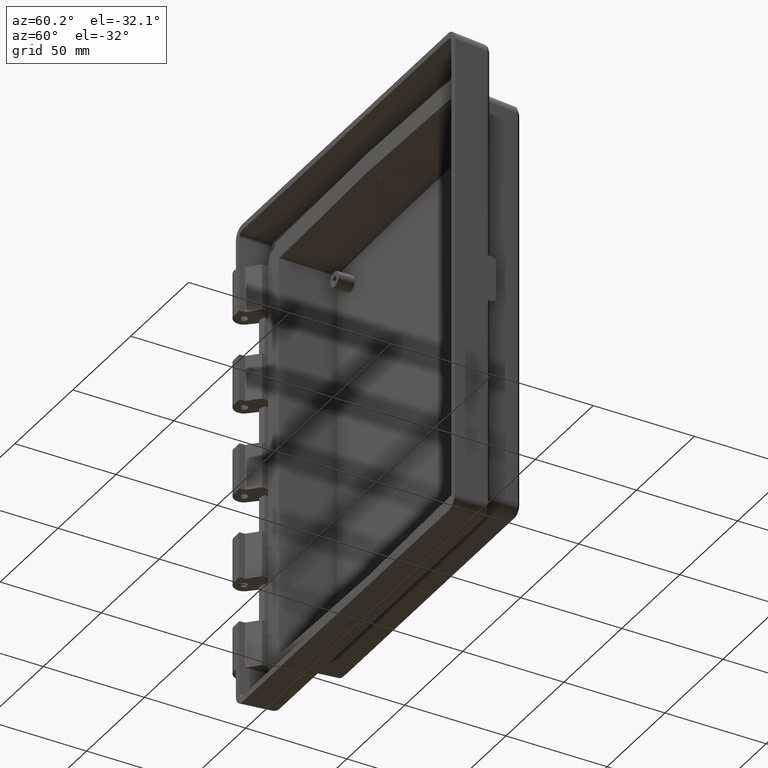
[diagram: clean part render]
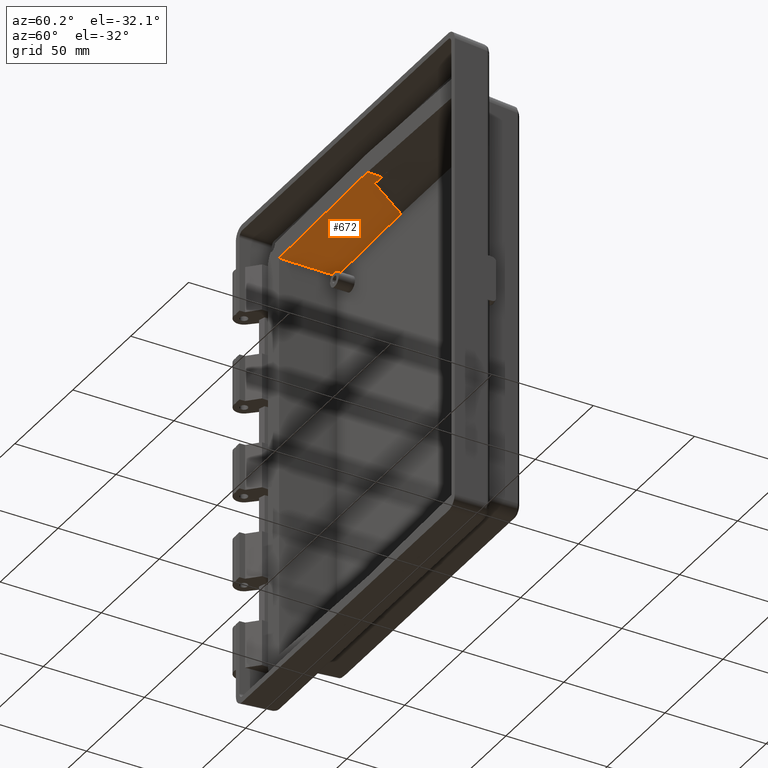
[diagram: same view with one face highlighted and labeled with its STEP entity id]
A machine part, auxiliary view. The second image highlights one B-rep face of the part: STEP entity #672.
In plain terms, the highlighted planar face has unit normal (0.0262, -0.0349, -0.999).
Its self-contained STEP definition (entity closure, byte-faithful):
#182 = VERTEX_POINT ( 'NONE', #2934 ) ;
#470 = LINE ( 'NONE', #8293, #7295 ) ;
#672 = ADVANCED_FACE ( 'NONE', ( #2758 ), #3971, .T. ) ;
#977 = EDGE_CURVE ( 'NONE', #4748, #7404, #470, .T. ) ;
#1084 = EDGE_CURVE ( 'NONE', #3117, #8044, #7407, .T. ) ;
#1111 = CARTESIAN_POINT ( 'NONE',  ( -76.44005613156466000, 3.000000000000000000, 100.3952735909513800 ) ) ;
#1307 = VECTOR ( 'NONE', #1804, 1000.000000000000100 ) ;
#1533 = ORIENTED_EDGE ( 'NONE', *, *, #977, .F. ) ;
#1615 = LINE ( 'NONE', #1111, #4529 ) ;
#1769 = EDGE_LOOP ( 'NONE', ( #5466, #4804, #2936, #5531, #4727, #1533, #8152 ) ) ;
#1782 = DIRECTION ( 'NONE',  ( -0.03487934512674303200, -0.9988137613916394700, 0.03397795370846538900 ) ) ;
#1804 = DIRECTION ( 'NONE',  ( -0.9996573249755572600, -0.0000000000000000000, -0.02617694830787295500 ) ) ;
#1810 = CARTESIAN_POINT ( 'NONE',  ( -76.41446079458467000, 31.00000000000000400, 99.41782710649752600 ) ) ;
#2330 = CARTESIAN_POINT ( 'NONE',  ( -75.35303248502970100, 30.15401051072828100, 99.47517431589295700 ) ) ;
#2393 = CARTESIAN_POINT ( 'NONE',  ( -75.44910780823252600, 28.45557802214292300, 99.53198939566384200 ) ) ;
#2472 = VECTOR ( 'NONE', #4150, 1000.000000000000000 ) ;
#2635 = CARTESIAN_POINT ( 'NONE',  ( -76.33803618062299300, 3.000000000000000000, 100.3979450773852300 ) ) ;
#2652 = DIRECTION ( 'NONE',  ( 0.0000000000000000000, 0.9993904096895385200, -0.03491144540944078600 ) ) ;
#2656 = LINE ( 'NONE', #7136, #1307 ) ;
#2758 = FACE_OUTER_BOUND ( 'NONE', #1769, .T. ) ;
#2775 = LINE ( 'NONE', #2798, #7424 ) ;
#2798 = CARTESIAN_POINT ( 'NONE',  ( -20.00000000000038000, 30.99999999999975100, 100.8950917522324900 ) ) ;
#2934 = CARTESIAN_POINT ( 'NONE',  ( 0.0000000000000000000, 9.999999999999991100, 102.1523977250716200 ) ) ;
#2936 = ORIENTED_EDGE ( 'NONE', *, *, #5625, .F. ) ;
#3117 = VERTEX_POINT ( 'NONE', #7347 ) ;
#3708 = CARTESIAN_POINT ( 'NONE',  ( -75.30492554835642200, 31.00000000000000000, 99.44688130943350800 ) ) ;
#3824 = DIRECTION ( 'NONE',  ( -0.9996573249755572600, -0.0000000000000000000, -0.02617694830787295500 ) ) ;
#3951 = DIRECTION ( 'NONE',  ( 0.02616100201824127200, -0.03489949670250105200, -0.9990483607430191700 ) ) ;
#3971 = PLANE ( 'NONE',  #6575 ) ;
#4058 = VERTEX_POINT ( 'NONE', #5791 ) ;
#4150 = DIRECTION ( 'NONE',  ( 1.084573375948204500E-019, -0.9993904096895385200, 0.03491144540944078600 ) ) ;
#4292 = EDGE_CURVE ( 'NONE', #7404, #7312, #1615, .T. ) ;
#4353 = EDGE_CURVE ( 'NONE', #8044, #4748, #6023, .T. ) ;
#4425 = DIRECTION ( 'NONE',  ( 0.9996573249755572600, -0.0000000000000000000, 0.02617694830787295500 ) ) ;
#4455 = LINE ( 'NONE', #6860, #2472 ) ;
#4529 = VECTOR ( 'NONE', #4425, 1000.000000000000100 ) ;
#4727 = ORIENTED_EDGE ( 'NONE', *, *, #4292, .F. ) ;
#4748 = VERTEX_POINT ( 'NONE', #5611 ) ;
#4804 = ORIENTED_EDGE ( 'NONE', *, *, #8092, .T. ) ;
#5466 = ORIENTED_EDGE ( 'NONE', *, *, #1084, .F. ) ;
#5531 = ORIENTED_EDGE ( 'NONE', *, *, #8088, .T. ) ;
#5611 = CARTESIAN_POINT ( 'NONE',  ( -75.44910780823252600, 28.45557802214292300, 99.53198939566384200 ) ) ;
#5625 = EDGE_CURVE ( 'NONE', #182, #4058, #2656, .T. ) ;
#5667 = VECTOR ( 'NONE', #3824, 1000.000000000000100 ) ;
#5791 = CARTESIAN_POINT ( 'NONE',  ( -5.985758701682327900, 9.999999999999991100, 101.9956551171768100 ) ) ;
#6003 = CARTESIAN_POINT ( 'NONE',  ( -76.44279848909822300, 3.469446951953614200E-015, 100.5000000000000000 ) ) ;
#6023 =( BOUNDED_CURVE ( )  B_SPLINE_CURVE ( 3, ( #3708, #2330, #6385, #2393 ),
 .UNSPECIFIED., .F., .F. ) 
 B_SPLINE_CURVE_WITH_KNOTS ( ( 4, 4 ),
 ( 4.453743101274584500, 4.473504441830170800 ),
 .UNSPECIFIED. ) 
 CURVE ( )  GEOMETRIC_REPRESENTATION_ITEM ( )  RATIONAL_B_SPLINE_CURVE ( ( 1.000000000000000000, 0.9999674577163739600, 0.9999674577163739600, 1.000000000000000000 ) ) 
 REPRESENTATION_ITEM ( '' )  );
#6163 = DIRECTION ( 'NONE',  ( 0.5545639901863578200, -0.8310006618297161000, 0.04355089926923302200 ) ) ;
#6385 = CARTESIAN_POINT ( 'NONE',  ( -75.40109480237930500, 29.30584225011054400, 99.50354460120358600 ) ) ;
#6575 = AXIS2_PLACEMENT_3D ( 'NONE', #6003, #3951, #2652 ) ;
#6860 = CARTESIAN_POINT ( 'NONE',  ( 8.288689949486820100E-015, 3.461874147112224400E-015, 102.5017251257646800 ) ) ;
#7136 = CARTESIAN_POINT ( 'NONE',  ( -76.43365729731965500, 9.999999999999991100, 100.1509119698379100 ) ) ;
#7295 = VECTOR ( 'NONE', #1782, 1000.000000000000000 ) ;
#7312 = VERTEX_POINT ( 'NONE', #7357 ) ;
#7347 = CARTESIAN_POINT ( 'NONE',  ( -20.00000000000001100, 31.00000000000000400, 100.8950917522324900 ) ) ;
#7357 = CARTESIAN_POINT ( 'NONE',  ( 0.0000000000000000000, 3.000000000000000000, 102.3969269055567700 ) ) ;
#7404 = VERTEX_POINT ( 'NONE', #2635 ) ;
#7407 = LINE ( 'NONE', #1810, #5667 ) ;
#7424 = VECTOR ( 'NONE', #6163, 1000.000000000000100 ) ;
#7985 = CARTESIAN_POINT ( 'NONE',  ( -75.30492554835642200, 31.00000000000000000, 99.44688130943350800 ) ) ;
#8044 = VERTEX_POINT ( 'NONE', #7985 ) ;
#8088 = EDGE_CURVE ( 'NONE', #182, #7312, #4455, .T. ) ;
#8092 = EDGE_CURVE ( 'NONE', #3117, #4058, #2775, .T. ) ;
#8152 = ORIENTED_EDGE ( 'NONE', *, *, #4353, .F. ) ;
#8293 = CARTESIAN_POINT ( 'NONE',  ( -76.44279848909822300, 3.469446951953614200E-015, 100.5000000000000000 ) ) ;